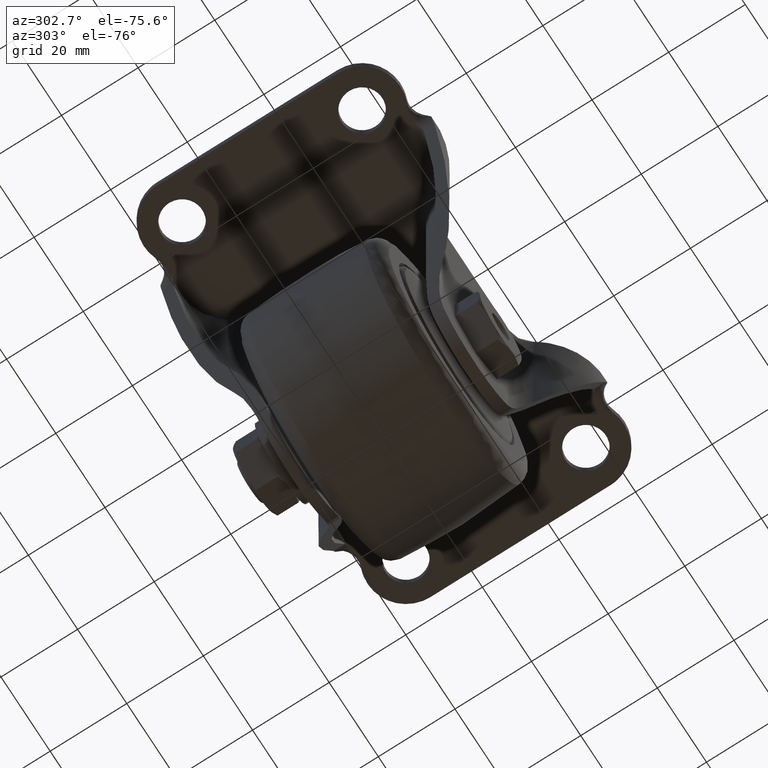
[diagram: clean part render]
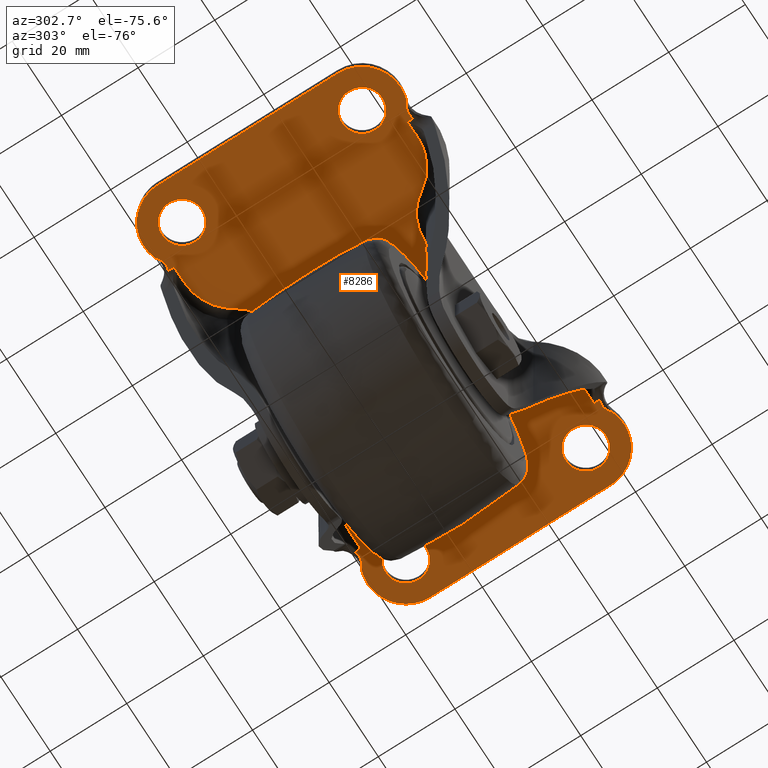
[diagram: same view with one face highlighted and labeled with its STEP entity id]
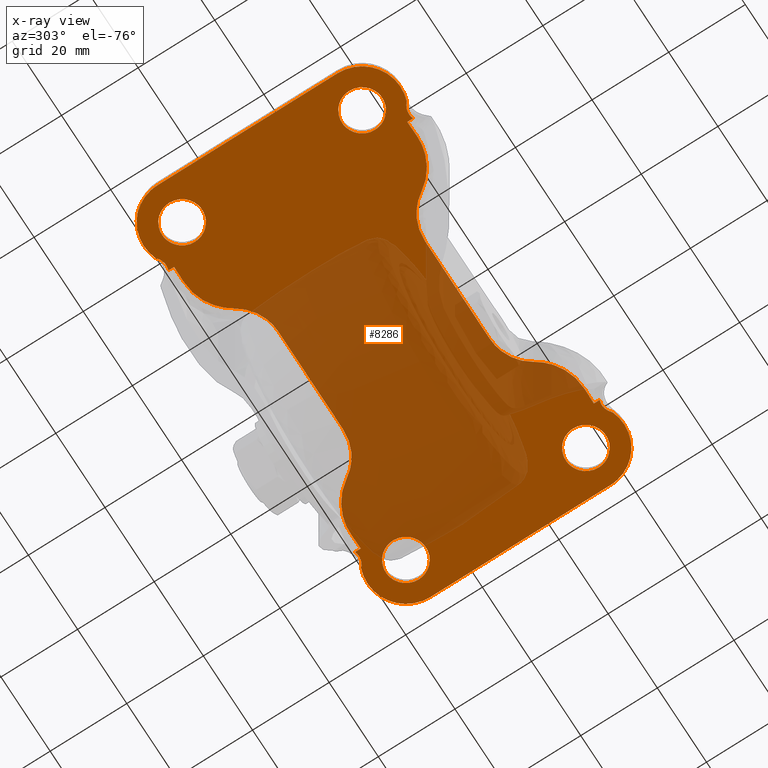
[diagram: x-ray of the same camera — body ghosted, the highlighted face saturated]
A machine part, auxiliary view. The second image highlights one B-rep face of the part: STEP entity #8286.
The next image is the same camera in x-ray: the body ghosted, the highlighted face saturated — about 48% of this face is hidden behind the body in this view.
In plain terms, the highlighted face is a freeform B-spline surface patch.
Its self-contained STEP definition (entity closure, byte-faithful):
#3135=CARTESIAN_POINT('',(-45.179400167103282,28.740207691694081,-2.900000000000000));
#3136=VERTEX_POINT('',#3135);
#3142=CARTESIAN_POINT('',(-40.249905000000012,23.500000000000000,-2.900000000000000));
#3143=VERTEX_POINT('',#3142);
#3144=CARTESIAN_POINT('',(-40.249905000000012,23.500000000000000,-2.900000000000000));
#3145=CARTESIAN_POINT('',(-40.249905000000012,28.438706850615205,-2.900000000000001));
#3146=CARTESIAN_POINT('',(-45.179400167103282,28.740207691694081,-2.900000000000001));
#3154=(BOUNDED_CURVE()B_SPLINE_CURVE(2,(#3144,#3145,#3146),.UNSPECIFIED.,.F.,.U.)B_SPLINE_CURVE_WITH_KNOTS((3,3),(0.500000000000000,0.739332962219660),.UNSPECIFIED.)CURVE()GEOMETRIC_REPRESENTATION_ITEM()RATIONAL_B_SPLINE_CURVE((1.0,0.719603993309301,0.976072041625392))REPRESENTATION_ITEM(''));
#3155=EDGE_CURVE('',#3143,#3136,#3154,.T.);
#3157=CARTESIAN_POINT('',(-46.119584732226009,18.286699986623798,-2.900000000000000));
#3158=VERTEX_POINT('',#3157);
#3159=CARTESIAN_POINT('',(-46.119584732226002,18.286699986623802,-2.900000000000000));
#3160=CARTESIAN_POINT('',(-45.810831628453492,18.249999999999996,-2.900000000000000));
#3161=CARTESIAN_POINT('',(-45.499904999999998,18.250000000000000,-2.900000000000000));
#3162=CARTESIAN_POINT('',(-40.249905000000012,18.250000000000000,-2.900000000000001));
#3163=CARTESIAN_POINT('',(-40.249905000000012,23.500000000000000,-2.900000000000000));
#3171=(BOUNDED_CURVE()B_SPLINE_CURVE(2,(#3159,#3160,#3161,#3162,#3163),.UNSPECIFIED.,.F.,.U.)B_SPLINE_CURVE_WITH_KNOTS((3,2,3),(0.229562473497618,0.250000000000000,0.500000000000000),.UNSPECIFIED.)CURVE()GEOMETRIC_REPRESENTATION_ITEM()RATIONAL_B_SPLINE_CURVE((0.956026754152554,0.976055948312528,1.0,0.707106781186547,1.0))REPRESENTATION_ITEM(''));
#3172=EDGE_CURVE('',#3158,#3143,#3171,.T.);
#3216=CARTESIAN_POINT('',(-50.749904999999998,23.500000000000000,-2.900000000000000));
#3217=VERTEX_POINT('',#3216);
#3218=CARTESIAN_POINT('',(-50.749904999999998,23.500000000000000,-2.900000000000000));
#3219=CARTESIAN_POINT('',(-50.749904999999984,18.837083739256169,-2.900000000000000));
#3220=CARTESIAN_POINT('',(-46.119584732226016,18.286699986623798,-2.900000000000000));
#3228=(BOUNDED_CURVE()B_SPLINE_CURVE(2,(#3218,#3219,#3220),.UNSPECIFIED.,.F.,.U.)B_SPLINE_CURVE_WITH_KNOTS((3,3),(0.0,0.229562473497618),.UNSPECIFIED.)CURVE()GEOMETRIC_REPRESENTATION_ITEM()RATIONAL_B_SPLINE_CURVE((1.0,0.731050832874019,0.956026754152554))REPRESENTATION_ITEM(''));
#3229=EDGE_CURVE('',#3217,#3158,#3228,.T.);
#3231=CARTESIAN_POINT('',(-45.179400167103275,28.740207691694081,-2.900000000000001));
#3232=CARTESIAN_POINT('',(-45.339502992342737,28.750000000000000,-2.900000000000000));
#3233=CARTESIAN_POINT('',(-45.499904999999998,28.750000000000000,-2.900000000000000));
#3234=CARTESIAN_POINT('',(-50.749904999999984,28.750000000000000,-2.900000000000001));
#3235=CARTESIAN_POINT('',(-50.749904999999998,23.500000000000000,-2.900000000000000));
#3243=(BOUNDED_CURVE()B_SPLINE_CURVE(2,(#3231,#3232,#3233,#3234,#3235),.UNSPECIFIED.,.F.,.U.)B_SPLINE_CURVE_WITH_KNOTS((3,2,3),(0.739332962219661,0.750000000000000,1.0),.UNSPECIFIED.)CURVE()GEOMETRIC_REPRESENTATION_ITEM()RATIONAL_B_SPLINE_CURVE((0.976072041625394,0.987502787877248,1.0,0.707106781186547,1.0))REPRESENTATION_ITEM(''));
#3244=EDGE_CURVE('',#3136,#3217,#3243,.T.);
#3321=CARTESIAN_POINT('',(-45.179400167103267,-18.259792308305919,-2.900000000000000));
#3322=VERTEX_POINT('',#3321);
#3328=CARTESIAN_POINT('',(-40.249905000000012,-23.500000000000000,-2.900000000000000));
#3329=VERTEX_POINT('',#3328);
#3330=CARTESIAN_POINT('',(-40.249905000000012,-23.500000000000000,-2.900000000000000));
#3331=CARTESIAN_POINT('',(-40.249905000000012,-18.561293149384799,-2.900000000000001));
#3332=CARTESIAN_POINT('',(-45.179400167103267,-18.259792308305915,-2.900000000000000));
#3340=(BOUNDED_CURVE()B_SPLINE_CURVE(2,(#3330,#3331,#3332),.UNSPECIFIED.,.F.,.U.)B_SPLINE_CURVE_WITH_KNOTS((3,3),(0.500000000000000,0.739332962219660),.UNSPECIFIED.)CURVE()GEOMETRIC_REPRESENTATION_ITEM()RATIONAL_B_SPLINE_CURVE((1.0,0.719603993309301,0.976072041625392))REPRESENTATION_ITEM(''));
#3341=EDGE_CURVE('',#3329,#3322,#3340,.T.);
#3343=CARTESIAN_POINT('',(-46.119584732226024,-28.713300013376202,-2.900000000000000));
#3344=VERTEX_POINT('',#3343);
#3345=CARTESIAN_POINT('',(-46.119584732226016,-28.713300013376195,-2.900000000000000));
#3346=CARTESIAN_POINT('',(-45.810831628453499,-28.750000000000004,-2.900000000000000));
#3347=CARTESIAN_POINT('',(-45.499904999999998,-28.750000000000000,-2.900000000000000));
#3348=CARTESIAN_POINT('',(-40.249905000000012,-28.750000000000000,-2.900000000000001));
#3349=CARTESIAN_POINT('',(-40.249905000000012,-23.500000000000000,-2.900000000000000));
#3357=(BOUNDED_CURVE()B_SPLINE_CURVE(2,(#3345,#3346,#3347,#3348,#3349),.UNSPECIFIED.,.F.,.U.)B_SPLINE_CURVE_WITH_KNOTS((3,2,3),(0.229562473497618,0.250000000000000,0.500000000000000),.UNSPECIFIED.)CURVE()GEOMETRIC_REPRESENTATION_ITEM()RATIONAL_B_SPLINE_CURVE((0.956026754152553,0.976055948312528,1.0,0.707106781186547,1.0))REPRESENTATION_ITEM(''));
#3358=EDGE_CURVE('',#3344,#3329,#3357,.T.);
#3402=CARTESIAN_POINT('',(-50.749904999999998,-23.500000000000000,-2.900000000000000));
#3403=VERTEX_POINT('',#3402);
#3404=CARTESIAN_POINT('',(-50.749904999999998,-23.500000000000000,-2.900000000000000));
#3405=CARTESIAN_POINT('',(-50.749904999999984,-28.162916260743813,-2.900000000000000));
#3406=CARTESIAN_POINT('',(-46.119584732226024,-28.713300013376202,-2.900000000000000));
#3414=(BOUNDED_CURVE()B_SPLINE_CURVE(2,(#3404,#3405,#3406),.UNSPECIFIED.,.F.,.U.)B_SPLINE_CURVE_WITH_KNOTS((3,3),(0.0,0.229562473497618),.UNSPECIFIED.)CURVE()GEOMETRIC_REPRESENTATION_ITEM()RATIONAL_B_SPLINE_CURVE((1.0,0.731050832874019,0.956026754152553))REPRESENTATION_ITEM(''));
#3415=EDGE_CURVE('',#3403,#3344,#3414,.T.);
#3417=CARTESIAN_POINT('',(-45.179400167103260,-18.259792308305915,-2.900000000000000));
#3418=CARTESIAN_POINT('',(-45.339502992342723,-18.250000000000000,-2.900000000000000));
#3419=CARTESIAN_POINT('',(-45.499904999999998,-18.250000000000000,-2.900000000000000));
#3420=CARTESIAN_POINT('',(-50.749904999999984,-18.250000000000000,-2.900000000000001));
#3421=CARTESIAN_POINT('',(-50.749904999999998,-23.500000000000000,-2.900000000000000));
#3429=(BOUNDED_CURVE()B_SPLINE_CURVE(2,(#3417,#3418,#3419,#3420,#3421),.UNSPECIFIED.,.F.,.U.)B_SPLINE_CURVE_WITH_KNOTS((3,2,3),(0.739332962219661,0.750000000000000,1.0),.UNSPECIFIED.)CURVE()GEOMETRIC_REPRESENTATION_ITEM()RATIONAL_B_SPLINE_CURVE((0.976072041625393,0.987502787877247,1.0,0.707106781186547,1.0))REPRESENTATION_ITEM(''));
#3430=EDGE_CURVE('',#3322,#3403,#3429,.T.);
#3507=CARTESIAN_POINT('',(45.820599832896832,28.740207691694081,-2.900000000000000));
#3508=VERTEX_POINT('',#3507);
#3514=CARTESIAN_POINT('',(50.750095000000087,23.500000000000000,-2.900000000000000));
#3515=VERTEX_POINT('',#3514);
#3516=CARTESIAN_POINT('',(50.750095000000087,23.500000000000000,-2.900000000000000));
#3517=CARTESIAN_POINT('',(50.750095000000094,28.438706850615205,-2.900000000000001));
#3518=CARTESIAN_POINT('',(45.820599832896832,28.740207691694081,-2.900000000000000));
#3526=(BOUNDED_CURVE()B_SPLINE_CURVE(2,(#3516,#3517,#3518),.UNSPECIFIED.,.F.,.U.)B_SPLINE_CURVE_WITH_KNOTS((3,3),(0.500000000000000,0.739332962219660),.UNSPECIFIED.)CURVE()GEOMETRIC_REPRESENTATION_ITEM()RATIONAL_B_SPLINE_CURVE((1.0,0.719603993309301,0.976072041625392))REPRESENTATION_ITEM(''));
#3527=EDGE_CURVE('',#3515,#3508,#3526,.T.);
#3529=CARTESIAN_POINT('',(44.880415267774083,18.286699986623798,-2.900000000000000));
#3530=VERTEX_POINT('',#3529);
#3531=CARTESIAN_POINT('',(44.880415267774090,18.286699986623805,-2.900000000000001));
#3532=CARTESIAN_POINT('',(45.189168371546600,18.249999999999996,-2.900000000000001));
#3533=CARTESIAN_POINT('',(45.500095000000087,18.250000000000000,-2.900000000000000));
#3534=CARTESIAN_POINT('',(50.750095000000108,18.250000000000000,-2.900000000000001));
#3535=CARTESIAN_POINT('',(50.750095000000087,23.500000000000000,-2.900000000000000));
#3543=(BOUNDED_CURVE()B_SPLINE_CURVE(2,(#3531,#3532,#3533,#3534,#3535),.UNSPECIFIED.,.F.,.U.)B_SPLINE_CURVE_WITH_KNOTS((3,2,3),(0.229562473497618,0.250000000000000,0.500000000000000),.UNSPECIFIED.)CURVE()GEOMETRIC_REPRESENTATION_ITEM()RATIONAL_B_SPLINE_CURVE((0.956026754152554,0.976055948312528,1.0,0.707106781186547,1.0))REPRESENTATION_ITEM(''));
#3544=EDGE_CURVE('',#3530,#3515,#3543,.T.);
#3588=CARTESIAN_POINT('',(40.250095000000087,23.500000000000000,-2.900000000000000));
#3589=VERTEX_POINT('',#3588);
#3590=CARTESIAN_POINT('',(40.250095000000087,23.500000000000000,-2.900000000000000));
#3591=CARTESIAN_POINT('',(40.250095000000101,18.837083739256180,-2.900000000000000));
#3592=CARTESIAN_POINT('',(44.880415267774090,18.286699986623798,-2.900000000000000));
#3600=(BOUNDED_CURVE()B_SPLINE_CURVE(2,(#3590,#3591,#3592),.UNSPECIFIED.,.F.,.U.)B_SPLINE_CURVE_WITH_KNOTS((3,3),(0.0,0.229562473497618),.UNSPECIFIED.)CURVE()GEOMETRIC_REPRESENTATION_ITEM()RATIONAL_B_SPLINE_CURVE((1.0,0.731050832874019,0.956026754152554))REPRESENTATION_ITEM(''));
#3601=EDGE_CURVE('',#3589,#3530,#3600,.T.);
#3603=CARTESIAN_POINT('',(45.820599832896832,28.740207691694085,-2.900000000000000));
#3604=CARTESIAN_POINT('',(45.660497007657369,28.750000000000000,-2.900000000000000));
#3605=CARTESIAN_POINT('',(45.500095000000087,28.750000000000000,-2.900000000000000));
#3606=CARTESIAN_POINT('',(40.250095000000087,28.750000000000000,-2.900000000000001));
#3607=CARTESIAN_POINT('',(40.250095000000087,23.500000000000000,-2.900000000000000));
#3615=(BOUNDED_CURVE()B_SPLINE_CURVE(2,(#3603,#3604,#3605,#3606,#3607),.UNSPECIFIED.,.F.,.U.)B_SPLINE_CURVE_WITH_KNOTS((3,2,3),(0.739332962219661,0.750000000000000,1.0),.UNSPECIFIED.)CURVE()GEOMETRIC_REPRESENTATION_ITEM()RATIONAL_B_SPLINE_CURVE((0.976072041625393,0.987502787877247,1.0,0.707106781186547,1.0))REPRESENTATION_ITEM(''));
#3616=EDGE_CURVE('',#3508,#3589,#3615,.T.);
#3693=CARTESIAN_POINT('',(45.820599832896832,-18.259792308305919,-2.900000000000000));
#3694=VERTEX_POINT('',#3693);
#3700=CARTESIAN_POINT('',(50.750095000000087,-23.500000000000000,-2.900000000000000));
#3701=VERTEX_POINT('',#3700);
#3702=CARTESIAN_POINT('',(50.750095000000087,-23.500000000000000,-2.900000000000000));
#3703=CARTESIAN_POINT('',(50.750095000000094,-18.561293149384799,-2.900000000000001));
#3704=CARTESIAN_POINT('',(45.820599832896832,-18.259792308305915,-2.900000000000000));
#3712=(BOUNDED_CURVE()B_SPLINE_CURVE(2,(#3702,#3703,#3704),.UNSPECIFIED.,.F.,.U.)B_SPLINE_CURVE_WITH_KNOTS((3,3),(0.500000000000000,0.739332962219660),.UNSPECIFIED.)CURVE()GEOMETRIC_REPRESENTATION_ITEM()RATIONAL_B_SPLINE_CURVE((1.0,0.719603993309301,0.976072041625392))REPRESENTATION_ITEM(''));
#3713=EDGE_CURVE('',#3701,#3694,#3712,.T.);
#3715=CARTESIAN_POINT('',(44.880415267774083,-28.713300013376202,-2.900000000000000));
#3716=VERTEX_POINT('',#3715);
#3717=CARTESIAN_POINT('',(44.880415267774090,-28.713300013376198,-2.900000000000001));
#3718=CARTESIAN_POINT('',(45.189168371546586,-28.749999999999996,-2.900000000000000));
#3719=CARTESIAN_POINT('',(45.500095000000087,-28.750000000000000,-2.900000000000000));
#3720=CARTESIAN_POINT('',(50.750095000000108,-28.750000000000000,-2.900000000000001));
#3721=CARTESIAN_POINT('',(50.750095000000087,-23.500000000000000,-2.900000000000000));
#3729=(BOUNDED_CURVE()B_SPLINE_CURVE(2,(#3717,#3718,#3719,#3720,#3721),.UNSPECIFIED.,.F.,.U.)B_SPLINE_CURVE_WITH_KNOTS((3,2,3),(0.229562473497618,0.250000000000000,0.500000000000000),.UNSPECIFIED.)CURVE()GEOMETRIC_REPRESENTATION_ITEM()RATIONAL_B_SPLINE_CURVE((0.956026754152554,0.976055948312528,1.0,0.707106781186547,1.0))REPRESENTATION_ITEM(''));
#3730=EDGE_CURVE('',#3716,#3701,#3729,.T.);
#3774=CARTESIAN_POINT('',(40.250095000000087,-23.500000000000000,-2.900000000000000));
#3775=VERTEX_POINT('',#3774);
#3776=CARTESIAN_POINT('',(40.250095000000087,-23.500000000000000,-2.900000000000000));
#3777=CARTESIAN_POINT('',(40.250095000000080,-28.162916260743827,-2.900000000000001));
#3778=CARTESIAN_POINT('',(44.880415267774083,-28.713300013376195,-2.900000000000000));
#3786=(BOUNDED_CURVE()B_SPLINE_CURVE(2,(#3776,#3777,#3778),.UNSPECIFIED.,.F.,.U.)B_SPLINE_CURVE_WITH_KNOTS((3,3),(0.0,0.229562473497618),.UNSPECIFIED.)CURVE()GEOMETRIC_REPRESENTATION_ITEM()RATIONAL_B_SPLINE_CURVE((1.0,0.731050832874019,0.956026754152554))REPRESENTATION_ITEM(''));
#3787=EDGE_CURVE('',#3775,#3716,#3786,.T.);
#3789=CARTESIAN_POINT('',(45.820599832896832,-18.259792308305922,-2.900000000000000));
#3790=CARTESIAN_POINT('',(45.660497007657369,-18.249999999999996,-2.900000000000000));
#3791=CARTESIAN_POINT('',(45.500095000000087,-18.250000000000000,-2.900000000000000));
#3792=CARTESIAN_POINT('',(40.250095000000087,-18.250000000000000,-2.900000000000001));
#3793=CARTESIAN_POINT('',(40.250095000000087,-23.500000000000000,-2.900000000000000));
#3801=(BOUNDED_CURVE()B_SPLINE_CURVE(2,(#3789,#3790,#3791,#3792,#3793),.UNSPECIFIED.,.F.,.U.)B_SPLINE_CURVE_WITH_KNOTS((3,2,3),(0.739332962219661,0.750000000000000,1.0),.UNSPECIFIED.)CURVE()GEOMETRIC_REPRESENTATION_ITEM()RATIONAL_B_SPLINE_CURVE((0.976072041625393,0.987502787877247,1.0,0.707106781186547,1.0))REPRESENTATION_ITEM(''));
#3802=EDGE_CURVE('',#3694,#3775,#3801,.T.);
#4282=CARTESIAN_POINT('',(37.956737375777649,-31.935527551332001,-2.900000000000000));
#4283=VERTEX_POINT('',#4282);
#4371=CARTESIAN_POINT('',(41.883698782540250,-32.823179629200652,-2.900000000000000));
#4372=VERTEX_POINT('',#4371);
#4373=CARTESIAN_POINT('',(41.883698782540250,-32.823179629200652,-2.900000000000000));
#4374=CARTESIAN_POINT('',(41.094724508707102,-32.071145265818437,-2.900000000000000));
#4375=CARTESIAN_POINT('',(40.099992231996353,-31.812796241469201,-2.900000000000000));
#4376=CARTESIAN_POINT('',(38.968439657991752,-31.518912640486000,-2.900000000000000));
#4377=CARTESIAN_POINT('',(37.956737375777649,-31.935527551332001,-2.900000000000000));
#4378=B_SPLINE_CURVE_WITH_KNOTS('',2,(#4373,#4374,#4375,#4376,#4377),.UNSPECIFIED.,.F.,.U.,(3,2,3),(0.0,0.500000000000000,1.0),.UNSPECIFIED.);
#4379=EDGE_CURVE('',#4372,#4283,#4378,.T.);
#4471=CARTESIAN_POINT('',(-37.956737375777450,-31.935449264833601,-2.900000000000000));
#4472=VERTEX_POINT('',#4471);
#4581=CARTESIAN_POINT('',(-41.883508983008703,-32.823179628913557,-2.900000000000000));
#4582=VERTEX_POINT('',#4581);
#4601=CARTESIAN_POINT('',(-37.956737375777450,-31.935449264833601,-2.900000000000000));
#4602=CARTESIAN_POINT('',(-38.967761733539902,-31.519155595834651,-2.900000000000000));
#4603=CARTESIAN_POINT('',(-40.099899521783399,-31.812795229058349,-2.900000000000000));
#4604=CARTESIAN_POINT('',(-41.094031271311003,-32.070640595001151,-2.900000000000000));
#4605=CARTESIAN_POINT('',(-41.883508983008703,-32.823179628913557,-2.900000000000000));
#4606=B_SPLINE_CURVE_WITH_KNOTS('',2,(#4601,#4602,#4603,#4604,#4605),.UNSPECIFIED.,.F.,.U.,(3,2,3),(0.0,0.500000000000000,1.0),.UNSPECIFIED.);
#4607=EDGE_CURVE('',#4472,#4582,#4606,.T.);
#4639=CARTESIAN_POINT('',(37.956737375777649,31.935527551332200,-2.900000000000000));
#4640=VERTEX_POINT('',#4639);
#4656=CARTESIAN_POINT('',(41.883698983008948,32.823179628913557,-2.900000000000000));
#4657=VERTEX_POINT('',#4656);
#4676=CARTESIAN_POINT('',(37.956737375777649,31.935527551332200,-2.900000000000000));
#4677=CARTESIAN_POINT('',(38.967796774403553,31.519177377342199,-2.900000000000000));
#4678=CARTESIAN_POINT('',(40.099992338836437,31.812796240356452,-2.900000000000000));
#4679=CARTESIAN_POINT('',(41.094177967514000,32.070624183767997,-2.900000000000000));
#4680=CARTESIAN_POINT('',(41.883698983008948,32.823179628913557,-2.900000000000000));
#4681=B_SPLINE_CURVE_WITH_KNOTS('',2,(#4676,#4677,#4678,#4679,#4680),.UNSPECIFIED.,.F.,.U.,(3,2,3),(0.0,0.500000000000000,1.0),.UNSPECIFIED.);
#4682=EDGE_CURVE('',#4640,#4657,#4681,.T.);
#4912=CARTESIAN_POINT('',(-37.956737375777450,31.935449264833700,-2.900000000000000));
#4913=VERTEX_POINT('',#4912);
#5001=CARTESIAN_POINT('',(-41.883508782540112,32.823179629200652,-2.900000000000000));
#5002=VERTEX_POINT('',#5001);
#5003=CARTESIAN_POINT('',(-41.883508782540112,32.823179629200652,-2.900000000000000));
#5004=CARTESIAN_POINT('',(-41.094577781352648,32.071161664557202,-2.900000000000000));
#5005=CARTESIAN_POINT('',(-40.099899414943202,31.812795230169201,-2.900000000000000));
#5006=CARTESIAN_POINT('',(-38.968404592020399,31.518890896065301,-2.900000000000000));
#5007=CARTESIAN_POINT('',(-37.956737375777450,31.935449264833700,-2.900000000000000));
#5008=B_SPLINE_CURVE_WITH_KNOTS('',2,(#5003,#5004,#5005,#5006,#5007),.UNSPECIFIED.,.F.,.U.,(3,2,3),(0.0,0.500000000000000,1.0),.UNSPECIFIED.);
#5009=EDGE_CURVE('',#5002,#4913,#5008,.T.);
#5899=CARTESIAN_POINT('',(-37.956737375777450,-30.435054793760852,-2.900000000000000));
#5900=VERTEX_POINT('',#5899);
#5901=CARTESIAN_POINT('',(-37.956737375777450,-30.435054793760852,-2.900000000000000));
#5902=CARTESIAN_POINT('',(-37.956737375777450,-31.935449264833601,-2.900000000000000));
#5903=QUASI_UNIFORM_CURVE('',1,(#5901,#5902),.UNSPECIFIED.,.F.,.U.);
#5904=EDGE_CURVE('',#5900,#4472,#5903,.T.);
#5981=CARTESIAN_POINT('',(-37.956737375777450,30.435054793760852,-2.900000000000000));
#5982=VERTEX_POINT('',#5981);
#5983=CARTESIAN_POINT('',(-37.956737375777450,31.935449264833700,-2.900000000000000));
#5984=CARTESIAN_POINT('',(-37.956737375777450,30.435054793760852,-2.900000000000000));
#5985=QUASI_UNIFORM_CURVE('',1,(#5983,#5984),.UNSPECIFIED.,.F.,.U.);
#5986=EDGE_CURVE('',#4913,#5982,#5985,.T.);
#6083=CARTESIAN_POINT('',(37.956737375777649,30.435057906488101,-2.900000000000000));
#6084=VERTEX_POINT('',#6083);
#6085=CARTESIAN_POINT('',(37.956737375777649,30.435057906488101,-2.900000000000000));
#6086=CARTESIAN_POINT('',(37.956737375777649,31.935527551332200,-2.900000000000000));
#6087=QUASI_UNIFORM_CURVE('',1,(#6085,#6086),.UNSPECIFIED.,.F.,.U.);
#6088=EDGE_CURVE('',#6084,#4640,#6087,.T.);
#6165=CARTESIAN_POINT('',(37.956737375777649,-30.435057906488101,-2.900000000000000));
#6166=VERTEX_POINT('',#6165);
#6167=CARTESIAN_POINT('',(37.956737375777649,-31.935527551332001,-2.900000000000000));
#6168=CARTESIAN_POINT('',(37.956737375777649,-30.435057906488101,-2.900000000000000));
#6169=QUASI_UNIFORM_CURVE('',1,(#6167,#6168),.UNSPECIFIED.,.F.,.U.);
#6170=EDGE_CURVE('',#4283,#6166,#6169,.T.);
#6278=CARTESIAN_POINT('',(-13.112338342704700,19.100000000000001,-2.900000000000000));
#6279=VERTEX_POINT('',#6278);
#6289=CARTESIAN_POINT('',(-22.859907161435100,24.397959183673500,-2.900000000000000));
#6290=VERTEX_POINT('',#6289);
#6291=CARTESIAN_POINT('',(-22.859907161435100,24.397959183673500,-2.900000000000000));
#6292=CARTESIAN_POINT('',(-22.091039597472200,23.169995674773350,-2.900000000000000));
#6293=CARTESIAN_POINT('',(-21.011077407768749,22.166023947972601,-2.900000000000000));
#6294=CARTESIAN_POINT('',(-19.942186807801701,21.172344769533400,-2.900000000000000));
#6295=CARTESIAN_POINT('',(-18.659315364617850,20.483336587547349,-2.900000000000000));
#6296=CARTESIAN_POINT('',(-16.084118150101300,19.100242466575999,-2.900000000000000));
#6297=CARTESIAN_POINT('',(-13.112338342704700,19.100000000000001,-2.900000000000000));
#6298=B_SPLINE_CURVE_WITH_KNOTS('',2,(#6291,#6292,#6293,#6294,#6295,#6296,#6297),.UNSPECIFIED.,.F.,.U.,(3,2,2,3),(0.0,0.250000000000000,0.500000000000000,1.0),.UNSPECIFIED.);
#6299=EDGE_CURVE('',#6290,#6279,#6298,.T.);
#6345=CARTESIAN_POINT('',(-34.091453257394051,30.498262201638902,-2.900000000000000));
#6346=VERTEX_POINT('',#6345);
#6376=CARTESIAN_POINT('',(-34.091453257394051,30.498262201638880,-2.900000000000000));
#6377=CARTESIAN_POINT('',(-26.753849887497907,30.618251023894512,-2.900000000000000));
#6378=CARTESIAN_POINT('',(-22.859907161435121,24.397959183673489,-2.900000000000000));
#6386=(BOUNDED_CURVE()B_SPLINE_CURVE(2,(#6376,#6377,#6378),.UNSPECIFIED.,.F.,.U.)CURVE()GEOMETRIC_REPRESENTATION_ITEM()QUASI_UNIFORM_CURVE()RATIONAL_B_SPLINE_CURVE((1.0,0.870827902500941,1.0))REPRESENTATION_ITEM(''));
#6387=EDGE_CURVE('',#6346,#6290,#6386,.T.);
#6408=CARTESIAN_POINT('',(13.112528927084121,19.100000000000001,-2.900000000000000));
#6409=VERTEX_POINT('',#6408);
#6423=CARTESIAN_POINT('',(-13.112338342704700,19.100000000000001,-2.900000000000000));
#6424=CARTESIAN_POINT('',(13.112528927084121,19.100000000000001,-2.900000000000000));
#6425=QUASI_UNIFORM_CURVE('',1,(#6423,#6424),.UNSPECIFIED.,.F.,.U.);
#6426=EDGE_CURVE('',#6279,#6409,#6425,.T.);
#6451=CARTESIAN_POINT('',(-37.956737375777450,30.435054793760852,-2.900000000000000));
#6452=CARTESIAN_POINT('',(-34.091453257394051,30.498262201638902,-2.900000000000000));
#6453=QUASI_UNIFORM_CURVE('',1,(#6451,#6452),.UNSPECIFIED.,.F.,.U.);
#6454=EDGE_CURVE('',#5982,#6346,#6453,.T.);
#6501=CARTESIAN_POINT('',(22.860098161435250,24.397959183673500,-2.900000000000000));
#6502=VERTEX_POINT('',#6501);
#6516=CARTESIAN_POINT('',(13.112528927084121,19.100000000000001,-2.900000000000000));
#6517=CARTESIAN_POINT('',(16.083245791866950,19.100242271544801,-2.900000000000000));
#6518=CARTESIAN_POINT('',(18.659506182024451,20.483336486431650,-2.900000000000000));
#6519=CARTESIAN_POINT('',(19.940785011688149,21.171205361695598,-2.900000000000000));
#6520=CARTESIAN_POINT('',(21.011268331582752,22.166023876139249,-2.900000000000000));
#6521=CARTESIAN_POINT('',(22.090714960334999,23.169172147279252,-2.900000000000000));
#6522=CARTESIAN_POINT('',(22.860098161435250,24.397959183673450,-2.900000000000000));
#6523=B_SPLINE_CURVE_WITH_KNOTS('',2,(#6516,#6517,#6518,#6519,#6520,#6521,#6522),.UNSPECIFIED.,.F.,.U.,(3,2,2,3),(0.0,0.500000000000000,0.750000000000000,1.0),.UNSPECIFIED.);
#6524=EDGE_CURVE('',#6409,#6502,#6523,.T.);
#6558=CARTESIAN_POINT('',(34.091643851339647,30.498262208278899,-2.900000000000000));
#6559=VERTEX_POINT('',#6558);
#6573=CARTESIAN_POINT('',(22.860098161435229,24.397959183673510,-2.900000000000000));
#6574=CARTESIAN_POINT('',(26.754040745420628,30.618250796936149,-2.900000000000000));
#6575=CARTESIAN_POINT('',(34.091643851339647,30.498262208278920,-2.900000000000000));
#6583=(BOUNDED_CURVE()B_SPLINE_CURVE(2,(#6573,#6574,#6575),.UNSPECIFIED.,.F.,.U.)CURVE()GEOMETRIC_REPRESENTATION_ITEM()QUASI_UNIFORM_CURVE()RATIONAL_B_SPLINE_CURVE((1.0,0.870827910179334,1.0))REPRESENTATION_ITEM(''));
#6584=EDGE_CURVE('',#6502,#6559,#6583,.T.);
#6623=CARTESIAN_POINT('',(34.091643851339647,30.498262208278899,-2.900000000000000));
#6624=CARTESIAN_POINT('',(37.956737375777649,30.435057906488101,-2.900000000000000));
#6625=QUASI_UNIFORM_CURVE('',1,(#6623,#6624),.UNSPECIFIED.,.F.,.U.);
#6626=EDGE_CURVE('',#6559,#6084,#6625,.T.);
#6667=CARTESIAN_POINT('',(13.112529342704841,-19.100000000000001,-2.900000000000000));
#6668=VERTEX_POINT('',#6667);
#6678=CARTESIAN_POINT('',(22.860098161435250,-24.397959183673450,-2.900000000000000));
#6679=VERTEX_POINT('',#6678);
#6680=CARTESIAN_POINT('',(22.860098161435250,-24.397959183673450,-2.900000000000000));
#6681=CARTESIAN_POINT('',(22.091230597464801,-23.169995674764451,-2.900000000000000));
#6682=CARTESIAN_POINT('',(21.011268407768600,-22.166023947972700,-2.900000000000000));
#6683=CARTESIAN_POINT('',(19.942377807801901,-21.172344769536050,-2.900000000000000));
#6684=CARTESIAN_POINT('',(18.659506364618000,-20.483336587547349,-2.900000000000000));
#6685=CARTESIAN_POINT('',(16.084309150101252,-19.100242466570599,-2.900000000000000));
#6686=CARTESIAN_POINT('',(13.112529342704841,-19.100000000000001,-2.900000000000000));
#6687=B_SPLINE_CURVE_WITH_KNOTS('',2,(#6680,#6681,#6682,#6683,#6684,#6685,#6686),.UNSPECIFIED.,.F.,.U.,(3,2,2,3),(0.0,0.250000000000000,0.500000000000000,1.0),.UNSPECIFIED.);
#6688=EDGE_CURVE('',#6679,#6668,#6687,.T.);
#6734=CARTESIAN_POINT('',(34.091644293091250,-30.498262201055152,-2.900000000000000));
#6735=VERTEX_POINT('',#6734);
#6765=CARTESIAN_POINT('',(34.091644293091257,-30.498262201055152,-2.900000000000000));
#6766=CARTESIAN_POINT('',(26.754040899988329,-30.618251043846890,-2.900000000000000));
#6767=CARTESIAN_POINT('',(22.860098161435211,-24.397959183673478,-2.900000000000000));
#6775=(BOUNDED_CURVE()B_SPLINE_CURVE(2,(#6765,#6766,#6767),.UNSPECIFIED.,.F.,.U.)CURVE()GEOMETRIC_REPRESENTATION_ITEM()QUASI_UNIFORM_CURVE()RATIONAL_B_SPLINE_CURVE((1.0,0.870827901825918,1.0))REPRESENTATION_ITEM(''));
#6776=EDGE_CURVE('',#6735,#6679,#6775,.T.);
#6797=CARTESIAN_POINT('',(-13.112339139850160,-19.100000000000001,-2.900000000000000));
#6798=VERTEX_POINT('',#6797);
#6812=CARTESIAN_POINT('',(13.112529342704841,-19.100000000000001,-2.900000000000000));
#6813=CARTESIAN_POINT('',(-13.112339139850160,-19.100000000000001,-2.900000000000000));
#6814=QUASI_UNIFORM_CURVE('',1,(#6812,#6813),.UNSPECIFIED.,.F.,.U.);
#6815=EDGE_CURVE('',#6668,#6798,#6814,.T.);
#6840=CARTESIAN_POINT('',(37.956737375777649,-30.435057906488101,-2.900000000000000));
#6841=CARTESIAN_POINT('',(34.091644293091250,-30.498262201055152,-2.900000000000000));
#6842=QUASI_UNIFORM_CURVE('',1,(#6840,#6841),.UNSPECIFIED.,.F.,.U.);
#6843=EDGE_CURVE('',#6166,#6735,#6842,.T.);
#6890=CARTESIAN_POINT('',(-22.859907161435100,-24.397959183673450,-2.900000000000000));
#6891=VERTEX_POINT('',#6890);
#6905=CARTESIAN_POINT('',(-13.112339139850160,-19.100000000000001,-2.900000000000000));
#6906=CARTESIAN_POINT('',(-16.083055684131050,-19.100242587547999,-2.900000000000000));
#6907=CARTESIAN_POINT('',(-18.659315714825649,-20.483336781483651,-2.900000000000000));
#6908=CARTESIAN_POINT('',(-19.940594375067299,-21.171205651349251,-2.900000000000000));
#6909=CARTESIAN_POINT('',(-21.011077553886100,-22.166024085749552,-2.900000000000000));
#6910=CARTESIAN_POINT('',(-22.090524041962450,-23.169172277645401,-2.900000000000000));
#6911=CARTESIAN_POINT('',(-22.859907161435100,-24.397959183673450,-2.900000000000000));
#6912=B_SPLINE_CURVE_WITH_KNOTS('',2,(#6905,#6906,#6907,#6908,#6909,#6910,#6911),.UNSPECIFIED.,.F.,.U.,(3,2,2,3),(0.0,0.500000000000000,0.750000000000000,1.0),.UNSPECIFIED.);
#6913=EDGE_CURVE('',#6798,#6891,#6912,.T.);
#6947=CARTESIAN_POINT('',(-34.091452774179103,-30.498262209540702,-2.900000000000000));
#6948=VERTEX_POINT('',#6947);
#6962=CARTESIAN_POINT('',(-22.859907161435100,-24.397959183673450,-2.900000000000000));
#6963=CARTESIAN_POINT('',(-26.753849718422245,-30.618250753808415,-2.900000000000000));
#6964=CARTESIAN_POINT('',(-34.091452774179103,-30.498262209540691,-2.900000000000000));
#6972=(BOUNDED_CURVE()B_SPLINE_CURVE(2,(#6962,#6963,#6964),.UNSPECIFIED.,.F.,.U.)CURVE()GEOMETRIC_REPRESENTATION_ITEM()QUASI_UNIFORM_CURVE()RATIONAL_B_SPLINE_CURVE((1.0,0.870827911638419,1.0))REPRESENTATION_ITEM(''));
#6973=EDGE_CURVE('',#6891,#6948,#6972,.T.);
#7012=CARTESIAN_POINT('',(-34.091452774179103,-30.498262209540702,-2.900000000000000));
#7013=CARTESIAN_POINT('',(-37.956737375777450,-30.435054793760852,-2.900000000000000));
#7014=QUASI_UNIFORM_CURVE('',1,(#7012,#7013),.UNSPECIFIED.,.F.,.U.);
#7015=EDGE_CURVE('',#6948,#5900,#7014,.T.);
#8155=CARTESIAN_POINT('',(-61.044354784860481,36.844841391254548,-2.900000000000000));
#8156=CARTESIAN_POINT('',(61.044547762112558,36.844841391254548,-2.900000000000000));
#8157=CARTESIAN_POINT('',(-61.044354784860481,-36.844842589249112,-2.900000000000000));
#8158=CARTESIAN_POINT('',(61.044547762112558,-36.844842589249112,-2.900000000000000));
#8159=B_SPLINE_SURFACE_WITH_KNOTS('',1,1,((#8155,#8157),(#8156,#8158)),.UNSPECIFIED.,.F.,.F.,.U.,(2,2),(2,2),(0.0,122.088902546973000),(0.0,73.689683980503659),.UNSPECIFIED.);
#8160=CARTESIAN_POINT('',(-55.499905000000012,23.500000000000000,-2.900000000000000));
#8161=VERTEX_POINT('',#8160);
#8162=CARTESIAN_POINT('',(-41.883508782540112,32.823179629200638,-2.900000000000000));
#8163=CARTESIAN_POINT('',(-46.799111859368573,34.729907707022825,-2.900000000000000));
#8164=CARTESIAN_POINT('',(-51.149508429684282,31.751180587485621,-2.900000000000000));
#8165=CARTESIAN_POINT('',(-55.499905000000005,28.772453467948406,-2.900000000000000));
#8166=CARTESIAN_POINT('',(-55.499905000000012,23.500000000000000,-2.900000000000000));
#8174=(BOUNDED_CURVE()B_SPLINE_CURVE(2,(#8162,#8163,#8164,#8165,#8166),.UNSPECIFIED.,.F.,.U.)B_SPLINE_CURVE_WITH_KNOTS((3,2,3),(0.0,0.500000000000000,1.0),.UNSPECIFIED.)CURVE()GEOMETRIC_REPRESENTATION_ITEM()RATIONAL_B_SPLINE_CURVE((1.0,0.884579092836935,1.0,0.884579092836935,1.0))REPRESENTATION_ITEM(''));
#8175=EDGE_CURVE('',#5002,#8161,#8174,.T.);
#8176=ORIENTED_EDGE('',*,*,#8175,.F.);
#8177=ORIENTED_EDGE('',*,*,#5009,.T.);
#8178=ORIENTED_EDGE('',*,*,#5986,.T.);
#8179=ORIENTED_EDGE('',*,*,#6454,.T.);
#8180=ORIENTED_EDGE('',*,*,#6387,.T.);
#8181=ORIENTED_EDGE('',*,*,#6299,.T.);
#8182=ORIENTED_EDGE('',*,*,#6426,.T.);
#8183=ORIENTED_EDGE('',*,*,#6524,.T.);
#8184=ORIENTED_EDGE('',*,*,#6584,.T.);
#8185=ORIENTED_EDGE('',*,*,#6626,.T.);
#8186=ORIENTED_EDGE('',*,*,#6088,.T.);
#8187=ORIENTED_EDGE('',*,*,#4682,.T.);
#8188=CARTESIAN_POINT('',(55.500095000000087,23.500000000000000,-2.900000000000000));
#8189=VERTEX_POINT('',#8188);
#8190=CARTESIAN_POINT('',(55.500095000000087,23.500000000000000,-2.900000000000000));
#8191=CARTESIAN_POINT('',(55.500095000000108,28.772453408267410,-2.900000000000000));
#8192=CARTESIAN_POINT('',(51.149698506749097,31.751180534719229,-2.900000000000000));
#8193=CARTESIAN_POINT('',(46.799302013498085,34.729907661171055,-2.900000000000000));
#8194=CARTESIAN_POINT('',(41.883698983008948,32.823179628913557,-2.900000000000000));
#8202=(BOUNDED_CURVE()B_SPLINE_CURVE(2,(#8190,#8191,#8192,#8193,#8194),.UNSPECIFIED.,.F.,.U.)B_SPLINE_CURVE_WITH_KNOTS((3,2,3),(0.0,0.500000000000000,1.0),.UNSPECIFIED.)CURVE()GEOMETRIC_REPRESENTATION_ITEM()RATIONAL_B_SPLINE_CURVE((1.0,0.884579095014940,1.0,0.884579095014940,1.0))REPRESENTATION_ITEM(''));
#8203=EDGE_CURVE('',#8189,#4657,#8202,.T.);
#8204=ORIENTED_EDGE('',*,*,#8203,.F.);
#8205=CARTESIAN_POINT('',(55.500095000000087,-23.500000000000000,-2.900000000000000));
#8206=VERTEX_POINT('',#8205);
#8207=CARTESIAN_POINT('',(55.500095000000087,23.500000000000000,-2.900000000000000));
#8208=CARTESIAN_POINT('',(55.500095000000087,-23.500000000000000,-2.900000000000000));
#8209=QUASI_UNIFORM_CURVE('',1,(#8207,#8208),.UNSPECIFIED.,.F.,.U.);
#8210=EDGE_CURVE('',#8189,#8206,#8209,.T.);
#8211=ORIENTED_EDGE('',*,*,#8210,.T.);
#8212=CARTESIAN_POINT('',(41.883698782540250,-32.823179629200659,-2.900000000000000));
#8213=CARTESIAN_POINT('',(46.799301859368725,-34.729907707022825,-2.900000000000001));
#8214=CARTESIAN_POINT('',(51.149698429684413,-31.751180587485610,-2.900000000000000));
#8215=CARTESIAN_POINT('',(55.500095000000087,-28.772453467948388,-2.900000000000001));
#8216=CARTESIAN_POINT('',(55.500095000000087,-23.500000000000000,-2.900000000000000));
#8224=(BOUNDED_CURVE()B_SPLINE_CURVE(2,(#8212,#8213,#8214,#8215,#8216),.UNSPECIFIED.,.F.,.U.)B_SPLINE_CURVE_WITH_KNOTS((3,2,3),(0.0,0.500000000000000,1.0),.UNSPECIFIED.)CURVE()GEOMETRIC_REPRESENTATION_ITEM()RATIONAL_B_SPLINE_CURVE((1.0,0.884579092836935,1.0,0.884579092836935,1.0))REPRESENTATION_ITEM(''));
#8225=EDGE_CURVE('',#4372,#8206,#8224,.T.);
#8226=ORIENTED_EDGE('',*,*,#8225,.F.);
#8227=ORIENTED_EDGE('',*,*,#4379,.T.);
#8228=ORIENTED_EDGE('',*,*,#6170,.T.);
#8229=ORIENTED_EDGE('',*,*,#6843,.T.);
#8230=ORIENTED_EDGE('',*,*,#6776,.T.);
#8231=ORIENTED_EDGE('',*,*,#6688,.T.);
#8232=ORIENTED_EDGE('',*,*,#6815,.T.);
#8233=ORIENTED_EDGE('',*,*,#6913,.T.);
#8234=ORIENTED_EDGE('',*,*,#6973,.T.);
#8235=ORIENTED_EDGE('',*,*,#7015,.T.);
#8236=ORIENTED_EDGE('',*,*,#5904,.T.);
#8237=ORIENTED_EDGE('',*,*,#4607,.T.);
#8238=CARTESIAN_POINT('',(-55.499905000000012,-23.500000000000000,-2.900000000000000));
#8239=VERTEX_POINT('',#8238);
#8240=CARTESIAN_POINT('',(-55.499905000000012,-23.500000000000000,-2.900000000000000));
#8241=CARTESIAN_POINT('',(-55.499905000000012,-28.772453408267445,-2.900000000000001));
#8242=CARTESIAN_POINT('',(-51.149508506748937,-31.751180534719261,-2.900000000000000));
#8243=CARTESIAN_POINT('',(-46.799112013497876,-34.729907661171076,-2.900000000000001));
#8244=CARTESIAN_POINT('',(-41.883508983008703,-32.823179628913557,-2.900000000000000));
#8252=(BOUNDED_CURVE()B_SPLINE_CURVE(2,(#8240,#8241,#8242,#8243,#8244),.UNSPECIFIED.,.F.,.U.)B_SPLINE_CURVE_WITH_KNOTS((3,2,3),(0.0,0.500000000000000,1.0),.UNSPECIFIED.)CURVE()GEOMETRIC_REPRESENTATION_ITEM()RATIONAL_B_SPLINE_CURVE((1.0,0.884579095014938,1.0,0.884579095014938,1.0))REPRESENTATION_ITEM(''));
#8253=EDGE_CURVE('',#8239,#4582,#8252,.T.);
#8254=ORIENTED_EDGE('',*,*,#8253,.F.);
#8255=CARTESIAN_POINT('',(-55.499905000000012,-23.500000000000000,-2.900000000000000));
#8256=CARTESIAN_POINT('',(-55.499905000000012,23.500000000000000,-2.900000000000000));
#8257=QUASI_UNIFORM_CURVE('',1,(#8255,#8256),.UNSPECIFIED.,.F.,.U.);
#8258=EDGE_CURVE('',#8239,#8161,#8257,.T.);
#8259=ORIENTED_EDGE('',*,*,#8258,.T.);
#8260=EDGE_LOOP('',(#8176,#8177,#8178,#8179,#8180,#8181,#8182,#8183,#8184,#8185,#8186,#8187,#8204,#8211,#8226,#8227,#8228,#8229,#8230,#8231,#8232,#8233,#8234,#8235,#8236,#8237,#8254,#8259));
#8261=FACE_OUTER_BOUND('',#8260,.T.);
#8262=ORIENTED_EDGE('',*,*,#3713,.T.);
#8263=ORIENTED_EDGE('',*,*,#3802,.T.);
#8264=ORIENTED_EDGE('',*,*,#3787,.T.);
#8265=ORIENTED_EDGE('',*,*,#3730,.T.);
#8266=EDGE_LOOP('',(#8262,#8263,#8264,#8265));
#8267=FACE_BOUND('',#8266,.T.);
#8268=ORIENTED_EDGE('',*,*,#3527,.T.);
#8269=ORIENTED_EDGE('',*,*,#3616,.T.);
#8270=ORIENTED_EDGE('',*,*,#3601,.T.);
#8271=ORIENTED_EDGE('',*,*,#3544,.T.);
#8272=EDGE_LOOP('',(#8268,#8269,#8270,#8271));
#8273=FACE_BOUND('',#8272,.T.);
#8274=ORIENTED_EDGE('',*,*,#3341,.T.);
#8275=ORIENTED_EDGE('',*,*,#3430,.T.);
#8276=ORIENTED_EDGE('',*,*,#3415,.T.);
#8277=ORIENTED_EDGE('',*,*,#3358,.T.);
#8278=EDGE_LOOP('',(#8274,#8275,#8276,#8277));
#8279=FACE_BOUND('',#8278,.T.);
#8280=ORIENTED_EDGE('',*,*,#3155,.T.);
#8281=ORIENTED_EDGE('',*,*,#3244,.T.);
#8282=ORIENTED_EDGE('',*,*,#3229,.T.);
#8283=ORIENTED_EDGE('',*,*,#3172,.T.);
#8284=EDGE_LOOP('',(#8280,#8281,#8282,#8283));
#8285=FACE_BOUND('',#8284,.T.);
#8286=ADVANCED_FACE('',(#8261,#8267,#8273,#8279,#8285),#8159,.T.);